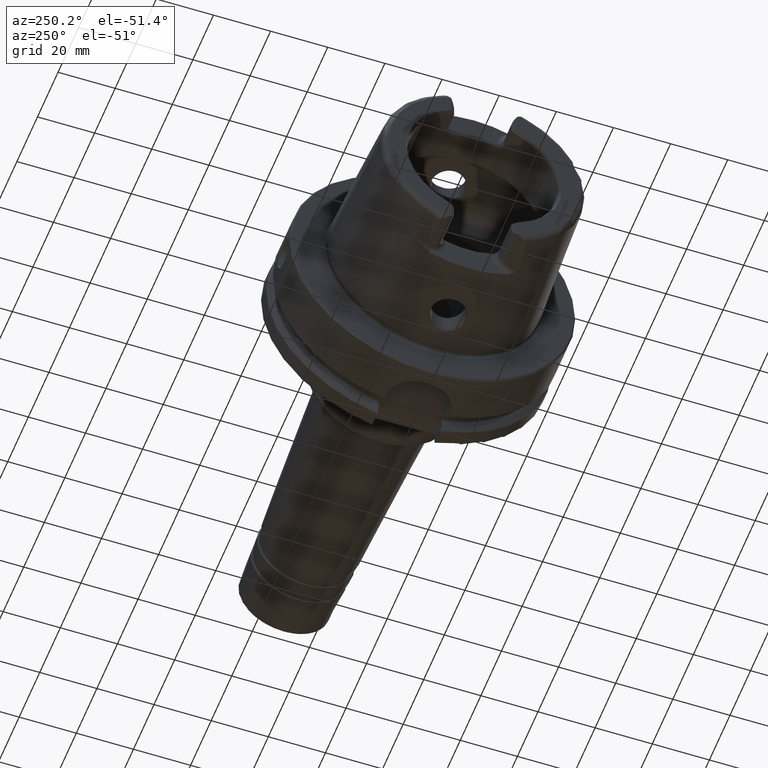
[diagram: clean part render]
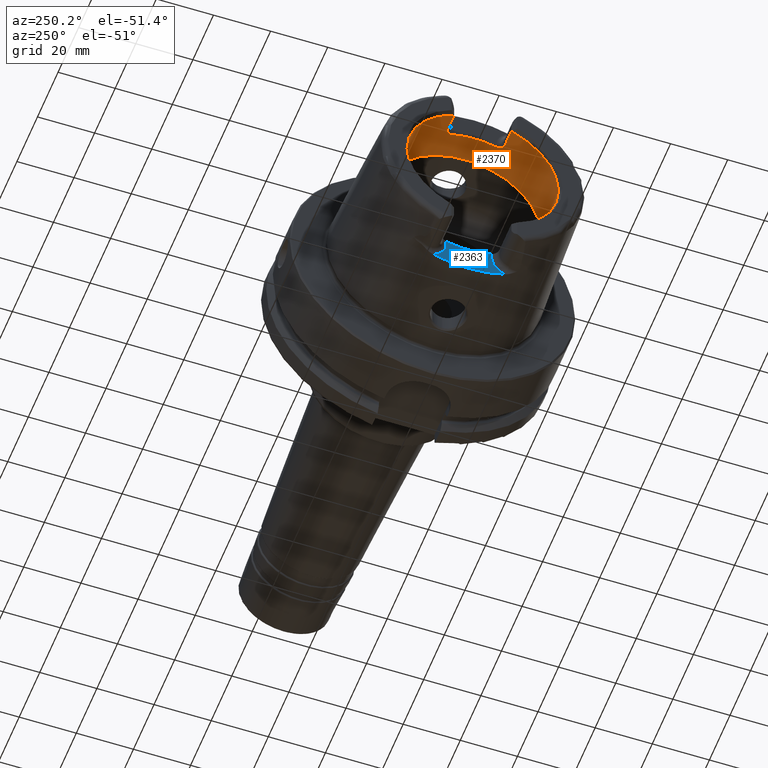
[diagram: same view with the hole feature highlighted: cylindrical wall and planar end face, labeled with their STEP entity ids]
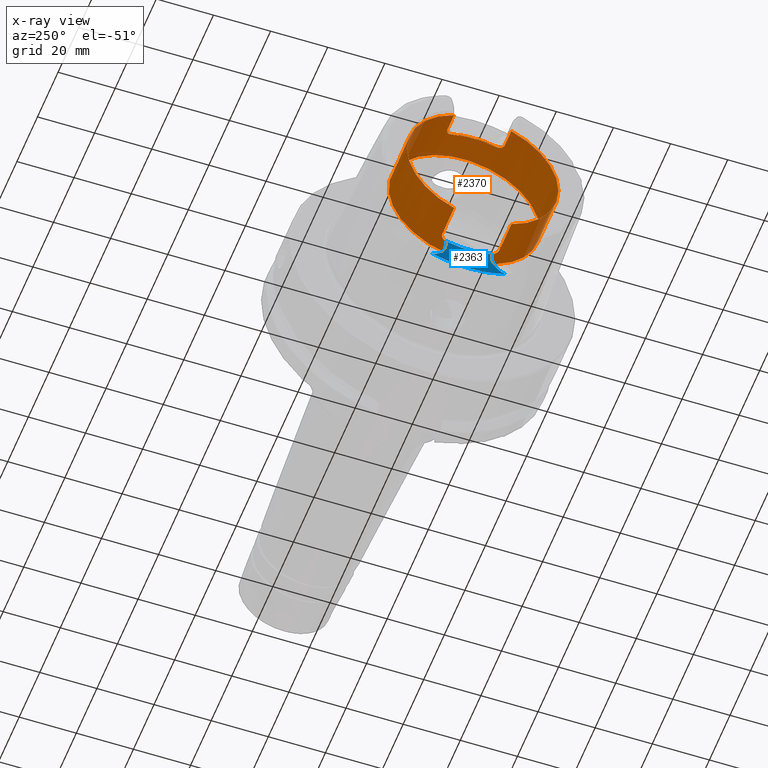
[diagram: x-ray of the same camera — body ghosted, the hole faces saturated]
A machine part, auxiliary view. The highlighted faces form one hole feature of diameter 53 mm: the cylindrical wall (entity #2370, orange) and its adjacent planar end face (entity #2363, blue) — they share a circular edge in the B-rep.
The next image is the same camera in x-ray (body ghosted, the hole faces saturated) — the bore reads through the body.
Wall:
#81=B_SPLINE_CURVE_WITH_KNOTS('',3,(#4947,#4948,#4949,#4950,#4951,#4952,
#4953,#4954,#4955,#4956),.UNSPECIFIED.,.F.,.F.,(4,2,2,2,4),(0.307245873696209,
0.387318131676521,0.467390389656833,0.542677307505841,0.617964225354849),
 .UNSPECIFIED.);
#82=B_SPLINE_CURVE_WITH_KNOTS('',3,(#4965,#4966,#4967,#4968,#4969,#4970,
#4971,#4972,#4973,#4974),.UNSPECIFIED.,.F.,.F.,(4,2,2,2,4),(0.61796422535485,
0.694491364966707,0.771018504578565,0.849854597041439,0.928690689504313),
 .UNSPECIFIED.);
#83=B_SPLINE_CURVE_WITH_KNOTS('',3,(#4983,#4984,#4985,#4986,#4987,#4988,
#4989,#4990,#4991,#4992),.UNSPECIFIED.,.F.,.F.,(4,2,2,2,4),(0.617964225354849,
0.693251143203857,0.768538061052865,0.848610319033177,0.928682577013489),
 .UNSPECIFIED.);
#84=B_SPLINE_CURVE_WITH_KNOTS('',3,(#5006,#5007,#5008,#5009,#5010,#5011,
#5012,#5013,#5014,#5015),.UNSPECIFIED.,.F.,.F.,(4,2,2,2,4),(0.307245873696209,
0.387318131676521,0.467390389656833,0.542677307505841,0.617964225354849),
 .UNSPECIFIED.);
#171=CYLINDRICAL_SURFACE('',#2677,26.5);
#205=LINE('',#3714,#317);
#211=LINE('',#3808,#323);
#217=LINE('',#3824,#329);
#221=LINE('',#3890,#333);
#280=LINE('',#5030,#392);
#317=VECTOR('',#2995,10.);
#323=VECTOR('',#3025,10.);
#329=VECTOR('',#3039,10.);
#333=VECTOR('',#3063,10.);
#392=VECTOR('',#3360,26.5);
#529=FACE_OUTER_BOUND('',#671,.T.);
#671=EDGE_LOOP('',(#2082,#2083,#2084,#2085,#2086,#2087,#2088,#2089,#2090,
#2091,#2092,#2093,#2094,#2095,#2096,#2097,#2098));
#843=CIRCLE('',#2665,26.5);
#848=CIRCLE('',#2676,26.5);
#849=CIRCLE('',#2678,26.5);
#850=CIRCLE('',#2679,26.5);
#851=CIRCLE('',#2680,26.5);
#852=CIRCLE('',#2681,26.5);
#853=CIRCLE('',#2682,26.5);
#956=VERTEX_POINT('',#3704);
#959=VERTEX_POINT('',#3712);
#968=VERTEX_POINT('',#3761);
#975=VERTEX_POINT('',#3807);
#978=VERTEX_POINT('',#3814);
#981=VERTEX_POINT('',#3822);
#988=VERTEX_POINT('',#3857);
#993=VERTEX_POINT('',#3889);
#1098=VERTEX_POINT('',#4945);
#1100=VERTEX_POINT('',#4964);
#1102=VERTEX_POINT('',#4982);
#1103=VERTEX_POINT('',#4999);
#1105=VERTEX_POINT('',#5026);
#1106=VERTEX_POINT('',#5027);
#1107=VERTEX_POINT('',#5029);
#1229=EDGE_CURVE('',#956,#959,#205,.T.);
#1247=EDGE_CURVE('',#975,#968,#211,.T.);
#1255=EDGE_CURVE('',#978,#981,#217,.T.);
#1269=EDGE_CURVE('',#993,#988,#221,.T.);
#1426=EDGE_CURVE('',#1098,#981,#81,.T.);
#1430=EDGE_CURVE('',#993,#1100,#82,.T.);
#1435=EDGE_CURVE('',#975,#1102,#83,.T.);
#1439=EDGE_CURVE('',#1103,#1102,#843,.T.);
#1443=EDGE_CURVE('',#1103,#959,#84,.T.);
#1447=EDGE_CURVE('',#1098,#1100,#848,.T.);
#1448=EDGE_CURVE('',#1105,#1106,#849,.T.);
#1449=EDGE_CURVE('',#1105,#1107,#280,.T.);
#1450=EDGE_CURVE('',#978,#1107,#850,.T.);
#1451=EDGE_CURVE('',#956,#988,#851,.T.);
#1452=EDGE_CURVE('',#1107,#968,#852,.T.);
#1453=EDGE_CURVE('',#1106,#1105,#853,.T.);
#2082=ORIENTED_EDGE('',*,*,#1448,.F.);
#2083=ORIENTED_EDGE('',*,*,#1449,.T.);
#2084=ORIENTED_EDGE('',*,*,#1450,.F.);
#2085=ORIENTED_EDGE('',*,*,#1255,.T.);
#2086=ORIENTED_EDGE('',*,*,#1426,.F.);
#2087=ORIENTED_EDGE('',*,*,#1447,.T.);
#2088=ORIENTED_EDGE('',*,*,#1430,.F.);
#2089=ORIENTED_EDGE('',*,*,#1269,.T.);
#2090=ORIENTED_EDGE('',*,*,#1451,.F.);
#2091=ORIENTED_EDGE('',*,*,#1229,.T.);
#2092=ORIENTED_EDGE('',*,*,#1443,.F.);
#2093=ORIENTED_EDGE('',*,*,#1439,.T.);
#2094=ORIENTED_EDGE('',*,*,#1435,.F.);
#2095=ORIENTED_EDGE('',*,*,#1247,.T.);
#2096=ORIENTED_EDGE('',*,*,#1452,.F.);
#2097=ORIENTED_EDGE('',*,*,#1449,.F.);
#2098=ORIENTED_EDGE('',*,*,#1453,.F.);
#2370=ADVANCED_FACE('',(#529),#171,.F.);
#2665=AXIS2_PLACEMENT_3D('',#5000,#3330,#3331);
#2676=AXIS2_PLACEMENT_3D('',#5024,#3354,#3355);
#2677=AXIS2_PLACEMENT_3D('',#5025,#3356,#3357);
#2678=AXIS2_PLACEMENT_3D('',#5028,#3358,#3359);
#2679=AXIS2_PLACEMENT_3D('',#5031,#3361,#3362);
#2680=AXIS2_PLACEMENT_3D('',#5032,#3363,#3364);
#2681=AXIS2_PLACEMENT_3D('',#5033,#3365,#3366);
#2682=AXIS2_PLACEMENT_3D('',#5034,#3367,#3368);
#2995=DIRECTION('',(1.,0.,0.));
#3025=DIRECTION('',(-1.,0.,0.));
#3039=DIRECTION('',(1.,0.,0.));
#3063=DIRECTION('',(-1.,0.,0.));
#3330=DIRECTION('center_axis',(-1.,0.,0.));
#3331=DIRECTION('ref_axis',(0.,1.,0.));
#3354=DIRECTION('center_axis',(-1.,0.,0.));
#3355=DIRECTION('ref_axis',(0.,1.,0.));
#3356=DIRECTION('center_axis',(-1.,0.,0.));
#3357=DIRECTION('ref_axis',(0.,1.,0.));
#3358=DIRECTION('center_axis',(-1.,0.,0.));
#3359=DIRECTION('ref_axis',(0.,0.,1.));
#3360=DIRECTION('',(-1.,0.,0.));
#3361=DIRECTION('center_axis',(1.,0.,0.));
#3362=DIRECTION('ref_axis',(0.,-1.,0.));
#3363=DIRECTION('center_axis',(1.,0.,0.));
#3364=DIRECTION('ref_axis',(0.,-1.,0.));
#3365=DIRECTION('center_axis',(1.,0.,0.));
#3366=DIRECTION('ref_axis',(0.,-1.,0.));
#3367=DIRECTION('center_axis',(-1.,0.,0.));
#3368=DIRECTION('ref_axis',(0.,0.,1.));
#3704=CARTESIAN_POINT('',(-48.5,10.01,-24.5367051577835));
#3712=CARTESIAN_POINT('',(-37.,10.01,-24.5367051577835));
#3714=CARTESIAN_POINT('',(-40.2903629710818,10.01,-24.5367051577835));
#3761=CARTESIAN_POINT('',(-48.5,-10.01,-24.5367051577835));
#3807=CARTESIAN_POINT('',(-37.,-10.01,-24.5367051577835));
#3808=CARTESIAN_POINT('',(-40.2903629710818,-10.01,-24.5367051577835));
#3814=CARTESIAN_POINT('',(-48.5,-10.01,24.5367051577835));
#3822=CARTESIAN_POINT('',(-42.,-10.01,24.5367051577835));
#3824=CARTESIAN_POINT('',(-40.2903629710818,-10.01,24.5367051577835));
#3857=CARTESIAN_POINT('',(-48.5,10.01,24.5367051577835));
#3889=CARTESIAN_POINT('',(-42.,10.01,24.5367051577835));
#3890=CARTESIAN_POINT('',(-40.2903629710818,10.01,24.5367051577835));
#4945=CARTESIAN_POINT('',(-40.,-8.01,25.2604414054862));
#4947=CARTESIAN_POINT('Ctrl Pts',(-40.,-8.01,25.2604414054862));
#4948=CARTESIAN_POINT('Ctrl Pts',(-40.,-8.26442271458071,25.1797648285777));
#4949=CARTESIAN_POINT('Ctrl Pts',(-40.0513332778729,-8.53503831367686,25.0892968127514));
#4950=CARTESIAN_POINT('Ctrl Pts',(-40.2604388709541,-9.03317850506395,24.9142806373643));
#4951=CARTESIAN_POINT('Ctrl Pts',(-40.4182028025644,-9.2607746884821,24.8299262887475));
#4952=CARTESIAN_POINT('Ctrl Pts',(-40.7762398849713,-9.61038047170956,24.6966285655713));
#4953=CARTESIAN_POINT('Ctrl Pts',(-40.996584045901,-9.75993653512726,24.6374761492843));
#4954=CARTESIAN_POINT('Ctrl Pts',(-41.4829332858843,-9.95981108540838,24.557356442995));
#4955=CARTESIAN_POINT('Ctrl Pts',(-41.74904360717,-10.01,24.5367051577835));
#4956=CARTESIAN_POINT('Ctrl Pts',(-42.,-10.01,24.5367051577835));
#4964=CARTESIAN_POINT('',(-40.,8.01,25.2604414054862));
#4965=CARTESIAN_POINT('Ctrl Pts',(-42.,10.01,24.5367051577835));
#4966=CARTESIAN_POINT('Ctrl Pts',(-41.7449095346271,10.01,24.5367051577835));
#4967=CARTESIAN_POINT('Ctrl Pts',(-41.4747619014646,9.95816285425487,24.5580391842641));
#4968=CARTESIAN_POINT('Ctrl Pts',(-40.9823460284033,9.75229566196282,24.640515927451));
#4969=CARTESIAN_POINT('Ctrl Pts',(-40.7599680829949,9.59839520774108,24.7013267120605));
#4970=CARTESIAN_POINT('Ctrl Pts',(-40.4063494382929,9.24477656303909,24.8358806096526));
#4971=CARTESIAN_POINT('Ctrl Pts',(-40.2529543645221,9.01930384320105,24.9192727261742));
#4972=CARTESIAN_POINT('Ctrl Pts',(-40.049776768453,8.52719637786957,25.0919293188873));
#4973=CARTESIAN_POINT('Ctrl Pts',(-40.,8.26049490494288,25.1810103236462));
#4974=CARTESIAN_POINT('Ctrl Pts',(-40.,8.01,25.2604414054862));
#4982=CARTESIAN_POINT('',(-35.,-8.01,-25.2604414054862));
#4983=CARTESIAN_POINT('Ctrl Pts',(-37.,-10.01,-24.5367051577835));
#4984=CARTESIAN_POINT('Ctrl Pts',(-36.74904360717,-10.01,-24.5367051577835));
#4985=CARTESIAN_POINT('Ctrl Pts',(-36.4829332858843,-9.95981108540838,-24.557356442995));
#4986=CARTESIAN_POINT('Ctrl Pts',(-35.9965840459011,-9.75993653512726,-24.6374761492843));
#4987=CARTESIAN_POINT('Ctrl Pts',(-35.7762398849713,-9.61038047170956,-24.6966285655713));
#4988=CARTESIAN_POINT('Ctrl Pts',(-35.4182028025644,-9.2607746884821,-24.8299262887475));
#4989=CARTESIAN_POINT('Ctrl Pts',(-35.2604388709541,-9.03317850506395,-24.9142806373643));
#4990=CARTESIAN_POINT('Ctrl Pts',(-35.0513332778729,-8.53503831367686,-25.0892968127514));
#4991=CARTESIAN_POINT('Ctrl Pts',(-35.,-8.26442271458071,-25.1797648285777));
#4992=CARTESIAN_POINT('Ctrl Pts',(-35.,-8.01,-25.2604414054862));
#4999=CARTESIAN_POINT('',(-35.,8.01,-25.2604414054862));
#5000=CARTESIAN_POINT('Origin',(-35.,0.,0.));
#5006=CARTESIAN_POINT('Ctrl Pts',(-35.,8.01,-25.2604414054862));
#5007=CARTESIAN_POINT('Ctrl Pts',(-35.,8.26442271458071,-25.1797648285777));
#5008=CARTESIAN_POINT('Ctrl Pts',(-35.0513332778729,8.53503831367686,-25.0892968127514));
#5009=CARTESIAN_POINT('Ctrl Pts',(-35.2604388709541,9.03317850506395,-24.9142806373643));
#5010=CARTESIAN_POINT('Ctrl Pts',(-35.4182028025644,9.2607746884821,-24.8299262887475));
#5011=CARTESIAN_POINT('Ctrl Pts',(-35.7762398849713,9.61038047170956,-24.6966285655713));
#5012=CARTESIAN_POINT('Ctrl Pts',(-35.9965840459011,9.75993653512726,-24.6374761492843));
#5013=CARTESIAN_POINT('Ctrl Pts',(-36.4829332858843,9.95981108540838,-24.557356442995));
#5014=CARTESIAN_POINT('Ctrl Pts',(-36.74904360717,10.01,-24.5367051577835));
#5015=CARTESIAN_POINT('Ctrl Pts',(-37.,10.01,-24.5367051577835));
#5024=CARTESIAN_POINT('Origin',(-40.,0.,0.));
#5025=CARTESIAN_POINT('Origin',(-40.2903629710818,0.,0.));
#5026=CARTESIAN_POINT('',(-30.5807259421637,-26.5,3.24531401774049E-15));
#5027=CARTESIAN_POINT('',(-30.5807259421637,-3.24531401774049E-15,-26.5));
#5028=CARTESIAN_POINT('Origin',(-30.5807259421637,0.,0.));
#5029=CARTESIAN_POINT('',(-48.5,-26.5,3.24531401774049E-15));
#5030=CARTESIAN_POINT('',(-40.2903629710818,-26.5,3.24531401774049E-15));
#5031=CARTESIAN_POINT('Origin',(-48.5,0.,0.));
#5032=CARTESIAN_POINT('Origin',(-48.5,0.,0.));
#5033=CARTESIAN_POINT('Origin',(-48.5,0.,0.));
#5034=CARTESIAN_POINT('Origin',(-30.5807259421637,0.,0.));
End face:
#130=PLANE('',#2664);
#276=LINE('',#4993,#388);
#278=LINE('',#5002,#390);
#388=VECTOR('',#3320,10.);
#390=VECTOR('',#3332,10.);
#522=FACE_OUTER_BOUND('',#664,.T.);
#664=EDGE_LOOP('',(#2052,#2053,#2054,#2055,#2056,#2057));
#791=CIRCLE('',#2563,36.25399498998);
#841=CIRCLE('',#2659,6.88);
#843=CIRCLE('',#2665,26.5);
#844=CIRCLE('',#2666,6.88);
#1001=VERTEX_POINT('',#4073);
#1002=VERTEX_POINT('',#4084);
#1101=VERTEX_POINT('',#4978);
#1102=VERTEX_POINT('',#4982);
#1103=VERTEX_POINT('',#4999);
#1104=VERTEX_POINT('',#5001);
#1281=EDGE_CURVE('',#1001,#1002,#791,.T.);
#1434=EDGE_CURVE('',#1101,#1001,#841,.T.);
#1436=EDGE_CURVE('',#1102,#1101,#276,.T.);
#1439=EDGE_CURVE('',#1103,#1102,#843,.T.);
#1440=EDGE_CURVE('',#1104,#1103,#278,.T.);
#1441=EDGE_CURVE('',#1002,#1104,#844,.T.);
#2052=ORIENTED_EDGE('',*,*,#1434,.F.);
#2053=ORIENTED_EDGE('',*,*,#1436,.F.);
#2054=ORIENTED_EDGE('',*,*,#1439,.F.);
#2055=ORIENTED_EDGE('',*,*,#1440,.F.);
#2056=ORIENTED_EDGE('',*,*,#1441,.F.);
#2057=ORIENTED_EDGE('',*,*,#1281,.F.);
#2363=ADVANCED_FACE('',(#522),#130,.T.);
#2563=AXIS2_PLACEMENT_3D('',#4085,#3073,#3074);
#2659=AXIS2_PLACEMENT_3D('',#4980,#3316,#3317);
#2664=AXIS2_PLACEMENT_3D('',#4998,#3328,#3329);
#2665=AXIS2_PLACEMENT_3D('',#5000,#3330,#3331);
#2666=AXIS2_PLACEMENT_3D('',#5003,#3333,#3334);
#3073=DIRECTION('center_axis',(1.,0.,0.));
#3074=DIRECTION('ref_axis',(0.,1.,0.));
#3316=DIRECTION('center_axis',(-1.,0.,0.));
#3317=DIRECTION('ref_axis',(0.,0.510937901715381,-0.8596176246394));
#3320=DIRECTION('',(0.,0.,-1.));
#3328=DIRECTION('center_axis',(-1.,0.,0.));
#3329=DIRECTION('ref_axis',(0.,0.,1.));
#3330=DIRECTION('center_axis',(-1.,0.,0.));
#3331=DIRECTION('ref_axis',(0.,1.,0.));
#3332=DIRECTION('',(0.,0.,1.));
#3333=DIRECTION('center_axis',(-1.,0.,0.));
#3334=DIRECTION('ref_axis',(0.,-0.510937901715381,-0.8596176246394));
#4073=CARTESIAN_POINT('',(-35.,-12.7918651267415,-33.9222690767105));
#4084=CARTESIAN_POINT('',(-35.,12.7918651267415,-33.9222690767105));
#4085=CARTESIAN_POINT('Origin',(-35.,0.,0.));
#4978=CARTESIAN_POINT('',(-35.,-8.01,-27.37));
#4980=CARTESIAN_POINT('Origin',(-35.,-14.89,-27.37));
#4982=CARTESIAN_POINT('',(-35.,-8.01,-25.2604414054862));
#4993=CARTESIAN_POINT('',(-35.,-8.01,-28.685));
#4998=CARTESIAN_POINT('Origin',(-35.,8.88178419700125E-15,-30.));
#4999=CARTESIAN_POINT('',(-35.,8.01,-25.2604414054862));
#5000=CARTESIAN_POINT('Origin',(-35.,0.,0.));
#5001=CARTESIAN_POINT('',(-35.,8.01,-27.37));
#5002=CARTESIAN_POINT('',(-35.,8.01,-25.));
#5003=CARTESIAN_POINT('Origin',(-35.,14.89,-27.37));